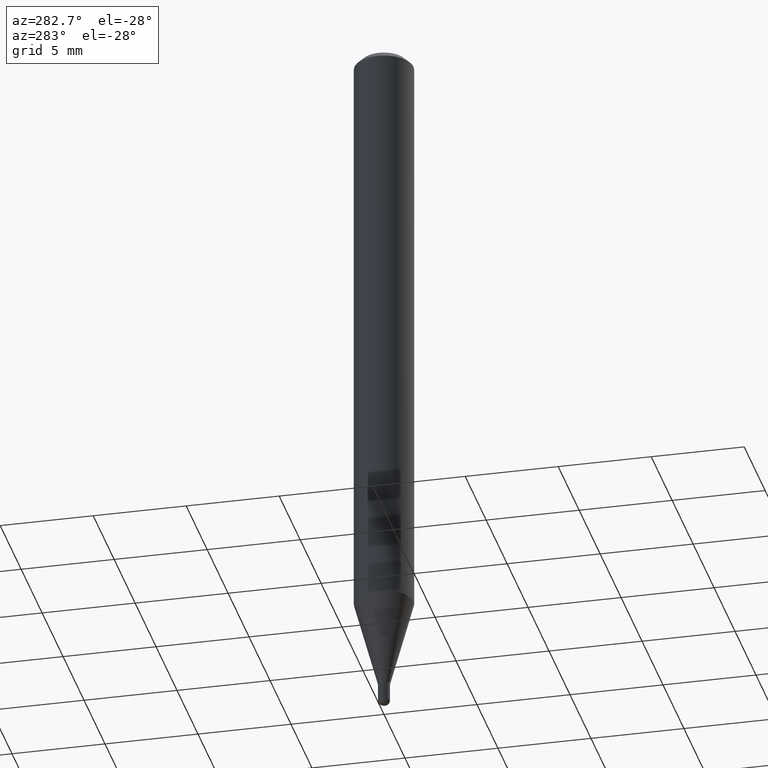
[diagram: clean part render]
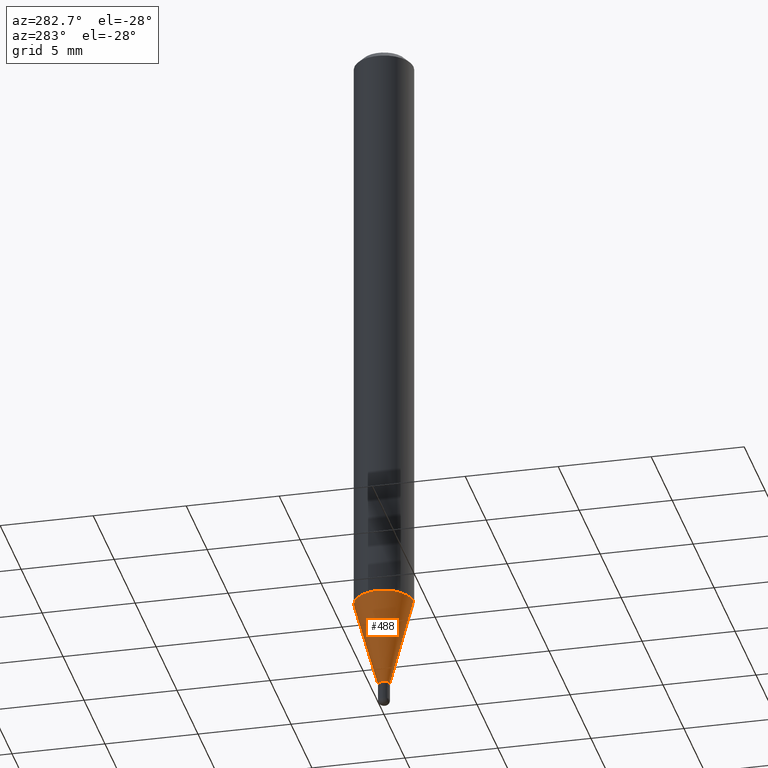
[diagram: same view with one face highlighted and labeled with its STEP entity id]
A machine part, auxiliary view. The second image highlights one B-rep face of the part: STEP entity #488.
In plain terms, the highlighted conical surface has half-angle 15 deg.
Its self-contained STEP definition (entity closure, byte-faithful):
#8 = DIRECTION ( 'NONE',  ( -6.982962677686265922E-15, -1.000000000000000000, 0.000000000000000000 ) ) ;
#15 = CONICAL_SURFACE ( 'NONE', #154, 0.01250000000000004580, 0.2617993877991491858 ) ;
#18 = CARTESIAN_POINT ( 'NONE',  ( -4.364351673553607559E-16, -0.06250000000000442701, -1.265397459621556253 ) ) ;
#22 = AXIS2_PLACEMENT_3D ( 'NONE', #276, #365, #8 ) ;
#79 = DIRECTION ( 'NONE',  ( -6.982962677686265922E-15, -1.000000000000000000, 0.000000000000000000 ) ) ;
#83 = CARTESIAN_POINT ( 'NONE',  ( 3.094332585030945656E-29, -4.418337065064606585E-15, -1.265397459621556697 ) ) ;
#122 = FACE_OUTER_BOUND ( 'NONE', #366, .T. ) ;
#154 = AXIS2_PLACEMENT_3D ( 'NONE', #279, #446, #79 ) ;
#157 = ORIENTED_EDGE ( 'NONE', *, *, #267, .F. ) ;
#159 = CARTESIAN_POINT ( 'NONE',  ( 8.881784197004833505E-17, 0.01249999999999497693, -1.452000000000000624 ) ) ;
#163 = VECTOR ( 'NONE', #222, 39.37007874015748854 ) ;
#165 = VERTEX_POINT ( 'NONE', #18 ) ;
#222 = DIRECTION ( 'NONE',  ( 1.839019923739592821E-15, 0.2588190451025239036, 0.9659258262890675351 ) ) ;
#228 = VERTEX_POINT ( 'NONE', #471 ) ;
#242 = DIRECTION ( 'NONE',  ( -6.982962677686265922E-15, -1.000000000000000000, 4.370956789862821150E-15 ) ) ;
#267 = EDGE_CURVE ( 'NONE', #228, #487, #517, .T. ) ;
#276 = CARTESIAN_POINT ( 'NONE',  ( 3.550640061193618917E-29, -5.069889598476417028E-15, -1.452000000000000624 ) ) ;
#279 = CARTESIAN_POINT ( 'NONE',  ( 3.550640061193618917E-29, -5.069889598476417028E-15, -1.452000000000000624 ) ) ;
#281 = EDGE_CURVE ( 'NONE', #368, #165, #512, .T. ) ;
#302 = DIRECTION ( 'NONE',  ( -1.807323732225322645E-15, -0.2588190451025171313, 0.9659258262890693114 ) ) ;
#319 = DIRECTION ( 'NONE',  ( -2.445344394761444786E-29, 3.491659503082930455E-15, 1.000000000000000000 ) ) ;
#333 = VECTOR ( 'NONE', #302, 39.37007874015748854 ) ;
#363 = EDGE_CURVE ( 'NONE', #487, #165, #430, .T. ) ;
#365 = DIRECTION ( 'NONE',  ( -2.445344394761444786E-29, 3.491659503082930455E-15, 1.000000000000000000 ) ) ;
#366 = EDGE_LOOP ( 'NONE', ( #157, #438, #516, #445 ) ) ;
#367 = CARTESIAN_POINT ( 'NONE',  ( -8.728703347104314329E-17, -0.01250000000000511466, -1.452000000000000624 ) ) ;
#368 = VERTEX_POINT ( 'NONE', #367 ) ;
#396 = AXIS2_PLACEMENT_3D ( 'NONE', #83, #319, #242 ) ;
#407 = EDGE_CURVE ( 'NONE', #228, #368, #514, .T. ) ;
#410 = CARTESIAN_POINT ( 'NONE',  ( 4.440892098500933817E-16, 0.06249999999999557992, -1.265397459621556919 ) ) ;
#430 = CIRCLE ( 'NONE', #396, 0.06250000000000000000 ) ;
#435 = CARTESIAN_POINT ( 'NONE',  ( -8.728703347104314329E-17, -0.01250000000000511466, -1.452000000000000624 ) ) ;
#438 = ORIENTED_EDGE ( 'NONE', *, *, #407, .T. ) ;
#445 = ORIENTED_EDGE ( 'NONE', *, *, #363, .F. ) ;
#446 = DIRECTION ( 'NONE',  ( -2.445344394761444786E-29, 3.491659503082930455E-15, 1.000000000000000000 ) ) ;
#471 = CARTESIAN_POINT ( 'NONE',  ( 2.664535259100710864E-16, 0.01249999999999497693, -1.452000000000000624 ) ) ;
#487 = VERTEX_POINT ( 'NONE', #410 ) ;
#488 = ADVANCED_FACE ( 'NONE', ( #122 ), #15, .T. ) ;
#512 = LINE ( 'NONE', #435, #333 ) ;
#514 = CIRCLE ( 'NONE', #22, 0.01250000000000004580 ) ;
#516 = ORIENTED_EDGE ( 'NONE', *, *, #281, .T. ) ;
#517 = LINE ( 'NONE', #159, #163 ) ;